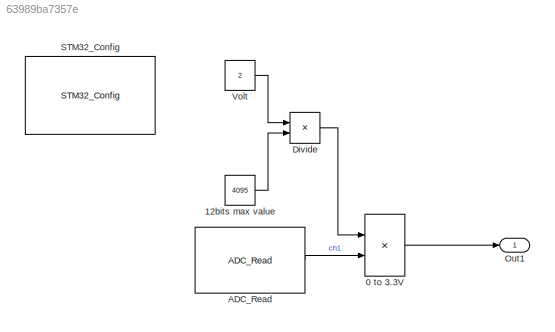
MODEL slx_63989ba7357e
KIND model
CONFIG AbsTol = auto
CONFIG EnableMultiTasking = on
CONFIG FixedStep = 0.004
CONFIG MaxStep = auto
CONFIG MinStep = auto
CONFIG RelTol = 1e-3
CONFIG SampleTimeConstraint = Unconstrained
CONFIG Solver = FixedStepDiscrete
CONFIG SolverName = FixedStepDiscrete
CONFIG StartTime = 0.0
CONFIG StopTime = inf
BLOCK [Product] 0 to 3.3V
  AttributesFormatString = SampleTime=%<SampleTime>
  InputSameDT = off
  OutDataTypeStr = single
  Ports = [2, 1]
  SaturateOnIntegerOverflow = off
BLOCK [Constant] 12bits max value
  Value = 4095
BLOCK [Reference] ADC_Read  REF=ADC_Lib/ADC_Read
  Ports = [0, 1]
  SourceBlock = ADC_Lib/ADC_Read
  SourceProductName = Target Support Package - STM32 Adapter
  SourceType = ADC_Read
BLOCK [Product] Divide
  AttributesFormatString = SampleTime=%<SampleTime>
  InputSameDT = off
  Inputs = */
  OutDataTypeStr = single
  Ports = [2, 1]
  RndMeth = Floor
  SaturateOnIntegerOverflow = off
BLOCK [Outport] Out1
  AttributesFormatString = SampleTime=%<SampleTime>
  IconDisplay = Port number
  OutDataTypeStr = single
  PortDimensions = 1
  SampleTime = 0.016
  SamplingMode = Sample based
  SignalType = real
  VarSizeSig = No
BLOCK [Reference] STM32_Config  REF=STM32_Config_Lib/STM32_Config
  Ports = []
  Priority = 0
  SourceBlock = STM32_Config_Lib/STM32_Config
  SourceProductName = Target Support Package - STM32 Adapter
  SourceType = STM32_Config
BLOCK [Constant] Volt
  OutDataTypeStr = single
  Value = 2
LINE 0 to 3.3V:1 -> Out1:1
LINE 12bits max value:1 -> Divide:2
LINE ADC_Read:1 -> 0 to 3.3V:2
LINE Divide:1 -> 0 to 3.3V:1
LINE Volt:1 -> Divide:1
